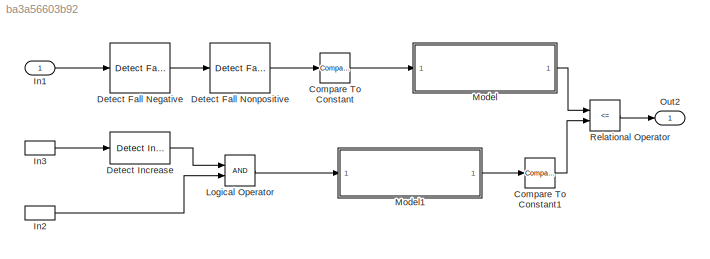
MODEL slx_ba3a56603b92
KIND model
CONFIG AbsTol = auto
CONFIG EnableMultiTasking = off
CONFIG FixedStep = auto
CONFIG MaxStep = auto
CONFIG MinStep = auto
CONFIG RelTol = 1e-3
CONFIG SampleTimeConstraint = Unconstrained
CONFIG Solver = VariableStepAuto
CONFIG SolverName = VariableStepAuto
CONFIG StartTime = 0.0
CONFIG StopTime = 10.0
BLOCK [Reference] Compare To Constant  REF=simulink/Logic and Bit
Operations/Compare
To Constant
  Ports = [1, 1]
  SourceBlock = simulink/Logic and Bit\nOperations/Compare\nTo Constant
  SourceType = Compare To Constant
BLOCK [Reference] Compare To Constant1  REF=simulink/Logic and Bit
Operations/Compare
To Constant
  Ports = [1, 1]
  SourceBlock = simulink/Logic and Bit\nOperations/Compare\nTo Constant
  SourceType = Compare To Constant
BLOCK [Reference] Detect Fall Negative  REF=simulink/Logic and Bit
Operations/Detect Fall
Negative
  Ports = [1, 1]
  SourceBlock = simulink/Logic and Bit\nOperations/Detect Fall\nNegative
  SourceType = Detect Fall Negative
BLOCK [Reference] Detect Fall Nonpositive  REF=simulink/Logic and Bit
Operations/Detect Fall
Nonpositive
  Ports = [1, 1]
  SourceBlock = simulink/Logic and Bit\nOperations/Detect Fall\nNonpositive
  SourceType = Detect Fall Nonpositive
BLOCK [Reference] Detect Increase  REF=simulink/Logic and Bit
Operations/Detect
Increase
  Ports = [1, 1]
  SourceBlock = simulink/Logic and Bit\nOperations/Detect\nIncrease
  SourceType = Detect Increase
BLOCK [Inport] In1
  IconDisplay = Port number
BLOCK [InportShadow] In2
  IconDisplay = Port number
BLOCK [InportShadow] In3
  IconDisplay = Port number
BLOCK [Logic] Logical Operator
  AllPortsSameDT = off
  OutDataTypeStr = boolean
  Ports = [2, 1]
BLOCK [ModelReference] Model
  ModelNameDialog = Block2111.slx
  ModelReferenceVersion = 1.4
  Ports = [1, 1]
  Variant = off
BLOCK [ModelReference] Model1
  ModelNameDialog = Block2112.slx
  ModelReferenceVersion = 1.1
  Ports = [1, 1]
  Variant = off
BLOCK [Outport] Out2
  IconDisplay = Port number
BLOCK [RelationalOperator] Relational Operator
  InputSameDT = off
  Operator = <=
  OutDataTypeStr = boolean
  Ports = [2, 1]
  RndMeth = Simplest
LINE Compare To Constant1:1 -> Relational Operator:2
LINE Compare To Constant:1 -> Model:1
LINE Detect Fall Negative:1 -> Detect Fall Nonpositive:1
LINE Detect Fall Nonpositive:1 -> Compare To Constant:1
LINE Detect Increase:1 -> Logical Operator:1
LINE In1:1 -> Detect Fall Negative:1
LINE In2:1 -> Logical Operator:2
LINE In3:1 -> Detect Increase:1
LINE Logical Operator:1 -> Model1:1
LINE Model1:1 -> Compare To Constant1:1
LINE Model:1 -> Relational Operator:1
LINE Relational Operator:1 -> Out2:1
